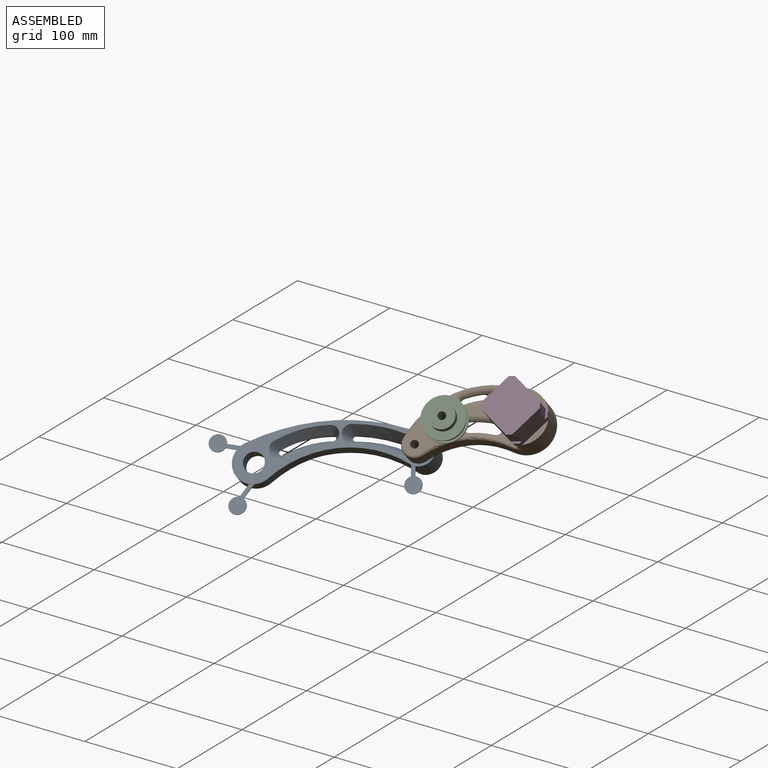
[diagram: assembled view]
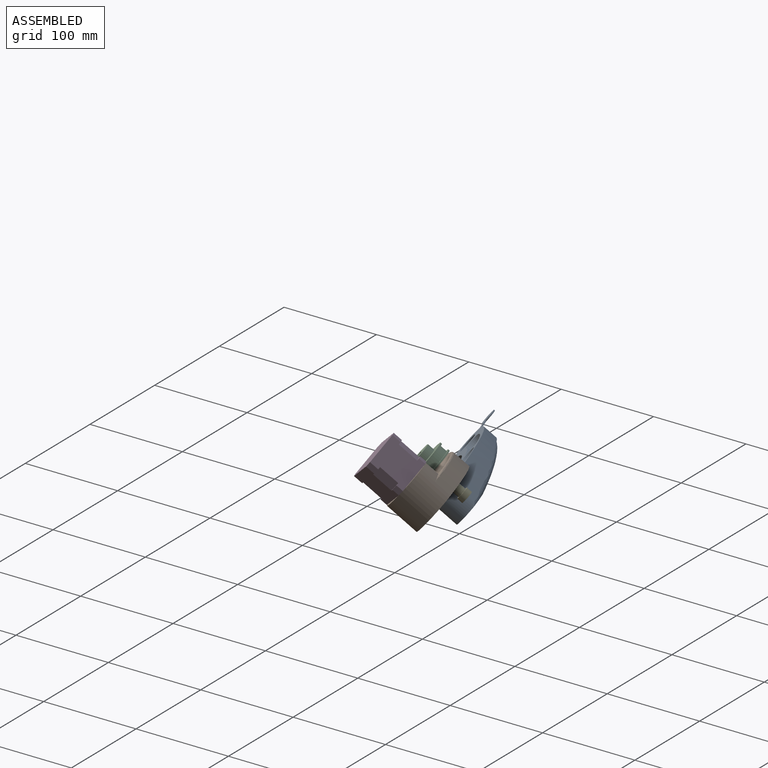
[diagram: assembled view, second angle]
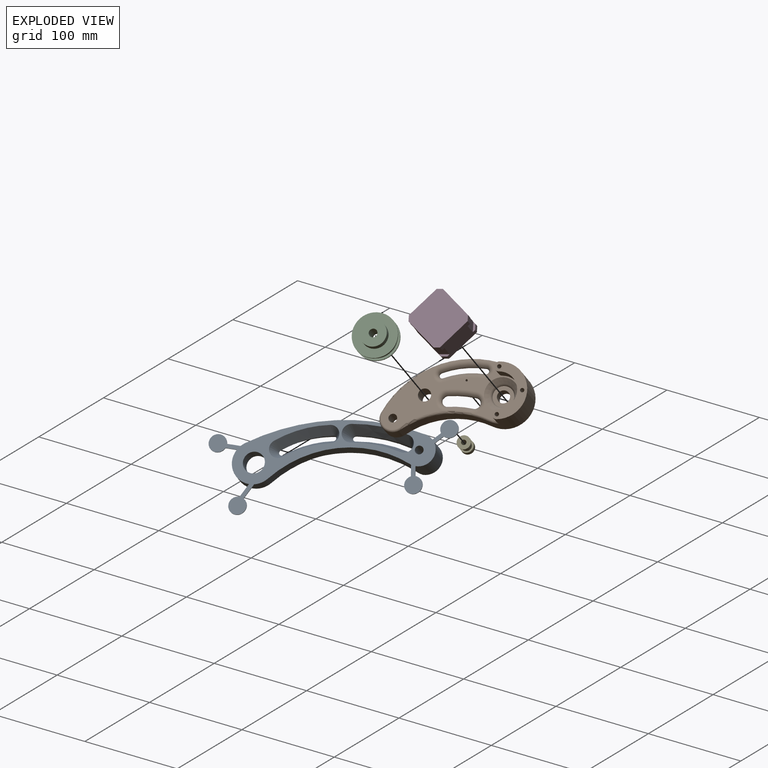
[diagram: exploded view]
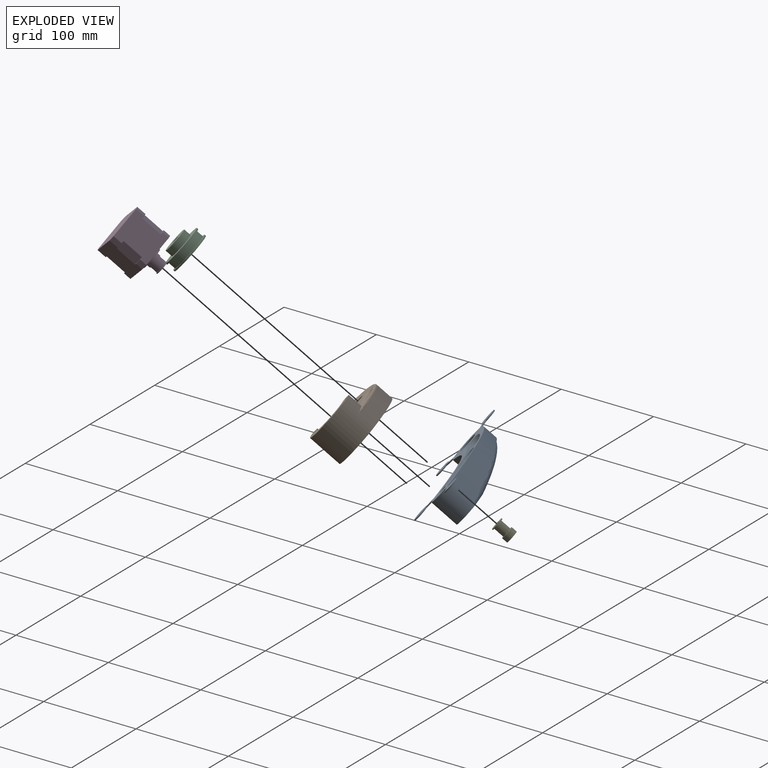
[diagram: exploded view, second angle]
ASSEMBLY  parts=5 mates=5
PART A: 54 faces, bbox 228.1x175.6x38.1 mm
  f0: cylinder r=20mm len=39.42mm, axis (0,0,-1), area 1019.2mm2, adj f7,f11,f14,f15,f45,f46,f49,f50
  f1: cylinder r=10mm len=20mm, axis (0,0,-1), area 942.5mm2, adj f14,f15
  f2: cylinder r=96.01mm len=27.82mm, axis (0,0,-1), area 48.6mm2, adj f3,f21,f27
  f3: cylinder r=2.5mm len=4.96mm, axis (0,0,-1), area 29.2mm2, adj f2,f12,f23,f25
  f4: cylinder r=124.74mm len=45.01mm, axis (0,0,-1), area 188.8mm2, adj f5,f10,f20,f34
  f5: cylinder r=2.5mm len=7.47mm, axis (0,0,-1), area 55.8mm2, adj f4,f6,f19,f33
  f6: cylinder r=129.74mm len=46.81mm, axis (0,0,-1), area 225.2mm2, adj f5,f10,f17,f35
  f7: cylinder r=204.43mm len=161.57mm, axis (0,0,-1), area 3192.5mm2, adj f0,f8,f14,f15,f31
  f8: cylinder r=15mm len=30mm, axis (0,0,-1), area 1466.7mm2, adj f7,f11,f13,f14,f31,f32,f37,f38
  f9: cylinder r=4mm len=30mm, axis (0,0,-1), area 754mm2, adj f13,f14
  f10: cylinder r=2.5mm len=4.95mm, axis (0,0,-1), area 5.2mm2, adj f4,f6,f18,f36
  f11: cylinder r=107.54mm len=128.13mm, axis (0,0,-1), area 2549.7mm2, adj f0,f8,f14,f15,f32
  f12: cylinder r=101.01mm len=31.01mm, axis (0,0,-1), area 61.5mm2, adj f3,f24,f26
  f13: plane 37.7x32.66mm, normal (0,0,1), area 657.9mm2, adj f8,f9,f16,f31,f32,f33,f35
  f14: plane 224.25x92.89mm, normal (0,0,-1), area 4089mm2, adj f0,f1,f7,f8,f9,f11,f17,f18
  f15: plane 83.65x49.18mm, normal (0,0,1), area 1125.8mm2, adj f0,f1,f7,f11,f16,f31,f32
  f16: cone r=21mm half-angle=82.6deg, axis (0,0,1), area 909.8mm2, adj f13,f15,f25,f26,f27,f28,f29,f30
  f17: cone r=135.74mm half-angle=16.7deg, axis (0,0,-1), area 1096.3mm2, adj f6,f14,f18,f19
  f18: cone r=2.5mm half-angle=16.7deg, axis (0,0,-1), area 360.8mm2, adj f10,f14,f17,f20
  f19: cone r=2.5mm half-angle=16.7deg, axis (0,0,-1), area 360.8mm2, adj f5,f14,f17,f20
  f20: cone r=124.74mm half-angle=16.7deg, axis (0,0,1), area 1005.4mm2, adj f4,f14,f18,f19
  f21: cone r=96.01mm half-angle=21.8deg, axis (0,0,1), area 739.7mm2, adj f2,f14,f22,f23,f29
  f22: cone r=2.5mm half-angle=21.8deg, axis (0,0,-1), area 279.1mm2, adj f14,f21,f24,f30
  f23: cone r=2.5mm half-angle=21.8deg, axis (0,0,-1), area 279.1mm2, adj f3,f14,f21,f24
  f24: cone r=107.01mm half-angle=21.8deg, axis (0,0,-1), area 827.2mm2, adj f12,f14,f22,f23,f28
  f25: bspline ~10.95x7.69mm, area 51.4mm2, adj f3,f16,f26,f27
  f26: bspline ~46.61x8.73mm, area 145.4mm2, adj f12,f16,f25,f28
  f27: bspline ~43.46x8.5mm, area 132.8mm2, adj f2,f16,f25,f29
  f28: bspline ~22.13x7.4mm, area 62.5mm2, adj f16,f24,f26,f30
  f29: bspline ~22.74x6.5mm, area 64.5mm2, adj f16,f21,f27,f30
  f30: bspline ~8.07x5.31mm, area 13.2mm2, adj f16,f22,f28,f29
  f31: bspline ~160.96x46.17mm, area 1007.1mm2, adj f7,f8,f13,f15,f16
  f32: bspline ~130.87x41.13mm, area 838.6mm2, adj f8,f11,f13,f15,f16
  f33: bspline ~9.99x8.63mm, area 31.3mm2, adj f5,f13,f16,f34,f35
  f34: bspline ~68.93x30.92mm, area 238.9mm2, adj f4,f16,f33,f36
  f35: bspline ~69.25x29.81mm, area 233.9mm2, adj f6,f13,f16,f33,f36
  f36: bspline ~10.97x6.96mm, area 55.2mm2, adj f10,f16,f34,f35
  f37: plane 10.51x1.94mm, normal (0.98,0.18,0), area 10.7mm2, adj f8,f14,f39,f40
  f38: plane 8.88x1.64mm, normal (-0.98,-0.18,0), area 9mm2, adj f8,f14,f39,f40
  f39: cylinder r=8.34mm len=16.68mm, axis (0,0,-1), area 48.4mm2, adj f14,f37,f38,f40
  f40: plane 27.14x16.68mm, normal (0,0,1), area 256.9mm2, adj f8,f37,f38,f39
  f41: plane 8.48x4.15mm, normal (0.44,0.9,0), area 9.4mm2, adj f8,f14,f43,f44
  f42: plane 9.08x4.45mm, normal (-0.44,-0.9,0), area 10.1mm2, adj f8,f14,f43,f44
  f43: cylinder r=8.34mm len=16.68mm, axis (0,0,-1), area 48.4mm2, adj f14,f41,f42,f44
  f44: plane 24.88x18.46mm, normal (0,0,1), area 256.7mm2, adj f8,f41,f42,f43
  f45: plane 11.47x10.76mm, normal (-0.68,-0.73,0), area 15.7mm2, adj f0,f14,f48,f49
  f46: plane 10.1x9.47mm, normal (0.68,0.73,0), area 13.8mm2, adj f0,f14,f47,f49
  f47: cylinder r=2mm len=1mm, axis (0,0,-1), area 0.2mm2, adj f14,f46,f48,f49
  f48: cylinder r=8.34mm len=16.68mm, axis (0,0,-1), area 48.3mm2, adj f14,f45,f47,f49
  f49: plane 26.26x25.64mm, normal (0,0,1), area 277mm2, adj f0,f45,f46,f47,f48
  f50: plane 11.83x4.66mm, normal (-0.37,0.93,0), area 12.7mm2, adj f0,f14,f52,f53
  f51: plane 9.9x3.9mm, normal (0.37,-0.93,0), area 10.6mm2, adj f0,f14,f52,f53
  f52: cylinder r=8.34mm len=16.68mm, axis (0,0,-1), area 48.3mm2, adj f14,f50,f51,f53
  f53: plane 28.18x18.05mm, normal (0,0,1), area 264.2mm2, adj f0,f50,f51,f52
PART B: 46 faces, bbox 141.9x77.3x35 mm
  f0: cylinder r=6mm len=12mm, axis (0,0,-1), area 452.4mm2, adj f11,f22
  f1: cylinder r=2mm len=20mm, axis (0,0,-1), area 251.3mm2, adj f15,f17
  f2: cylinder r=2mm len=20mm, axis (0,0,-1), area 251.3mm2, adj f15,f19
  f3: cylinder r=2mm len=20mm, axis (0,0,-1), area 251.3mm2, adj f15,f21
  f4: plane 127.84x61.49mm, normal (0,0,1), area 2315.4mm2, adj f5,f8,f10,f12,f13,f14,f23,f25
  f5: cylinder r=26.5mm len=52.41mm, axis (0,0,-1), area 2881.2mm2, adj f4,f6,f9,f11,f12,f13,f15,f26
  f6: cylinder r=90.24mm len=126.3mm, axis (0,0,-1), area 2534mm2, adj f5,f7,f11,f29
  f7: cylinder r=12.5mm len=20.47mm, axis (0,0,-1), area 599.1mm2, adj f6,f9,f11,f28
  f8: cylinder r=4mm len=20mm, axis (0,0,-1), area 502.7mm2, adj f4,f11
  f9: cylinder r=80mm len=79.22mm, axis (0,0,-1), area 1504mm2, adj f5,f7,f11,f27
  f10: cylinder r=6mm len=20mm, axis (0,0,-1), area 754mm2, adj f4,f11
  f11: plane 139x67.19mm, normal (0,0,-1), area 4060.4mm2, adj f0,f5,f6,f7,f8,f9,f10,f16
  f12: cylinder r=4.58mm len=17mm, axis (0,0,-1), area 219.5mm2, adj f4,f5,f14,f15,f26
  f13: cylinder r=4.58mm len=15mm, axis (0,0,-1), area 215.8mm2, adj f4,f5,f14,f15
  f14: cylinder r=17.34mm len=34.29mm, axis (0,0,-1), area 817.2mm2, adj f4,f12,f13,f15
  f15: plane 52.51x35.69mm, normal (0,0,1), area 658.9mm2, adj f1,f2,f3,f5,f12,f13,f14
  f16: cylinder r=4mm len=15mm, axis (0,0,-1), area 377mm2, adj f11,f17
  f17: plane 8x8mm, normal (0,0,-1), area 37.7mm2, adj f1,f16
  f18: cylinder r=4mm len=15mm, axis (0,0,-1), area 377mm2, adj f11,f19
  f19: plane 8x8mm, normal (0,0,-1), area 37.7mm2, adj f2,f18
  f20: cylinder r=4mm len=15mm, axis (0,0,-1), area 377mm2, adj f11,f21
  f21: plane 8x8mm, normal (0,0,-1), area 37.7mm2, adj f3,f20
  f22: plane 20x20mm, normal (0,0,1), area 201.1mm2, adj f0,f24
  f23: cone r=10mm half-angle=45deg, axis (0,0,1), area 553.5mm2, adj f4,f24,f39
  f24: torus R=15mm, axis (0,0,-1), area 254.5mm2, adj f22,f23
  f25: cylinder r=1mm len=20mm, axis (0,0,1), area 125.7mm2, adj f4,f11
  f26: torus R=24.5mm, axis (0,0,1), area 27.8mm2, adj f4,f5,f12,f27
  f27: torus R=82mm, axis (0,0,1), area 264.9mm2, adj f4,f9,f26,f28,f38
  f28: torus R=10.5mm, axis (0,0,1), area 98.5mm2, adj f4,f7,f27,f29
  f29: torus R=88.24mm, axis (0,0,1), area 418.7mm2, adj f4,f5,f6,f28
  f30: cone r=102mm half-angle=18.4deg, axis (0,0,-1), area 428.8mm2, adj f11,f31,f32,f41
  f31: cone r=5mm half-angle=18.4deg, axis (0,0,-1), area 372.5mm2, adj f11,f30,f33,f39
  f32: cone r=5mm half-angle=18.4deg, axis (0,0,-1), area 372.5mm2, adj f11,f30,f33,f40
  f33: cone r=87mm half-angle=18.4deg, axis (0,0,1), area 364.2mm2, adj f11,f31,f32,f38
  f34: cone r=82.74mm half-angle=18.4deg, axis (0,0,-1), area 679mm2, adj f11,f35,f36,f45
  f35: cone r=2.5mm half-angle=18.4deg, axis (0,0,-1), area 248.4mm2, adj f11,f34,f37,f43
  f36: cone r=2.5mm half-angle=18.4deg, axis (0,0,-1), area 248.4mm2, adj f11,f34,f37,f44
  f37: cone r=72.74mm half-angle=18.4deg, axis (0,0,1), area 599.4mm2, adj f11,f35,f36,f42
  f38: torus R=82mm, axis (0,0,1), area 182.4mm2, adj f27,f33,f39,f40
  f39: torus R=10mm, axis (0,0,1), area 167.1mm2, adj f4,f23,f31,f38,f41
  f40: torus R=10mm, axis (0,0,1), area 168.2mm2, adj f4,f32,f38,f41
  f41: torus R=102mm, axis (0,0,1), area 211.6mm2, adj f4,f30,f39,f40
  f42: torus R=72.74mm, axis (0,0,1), area 300.4mm2, adj f4,f37,f43,f44
  f43: torus R=7.5mm, axis (0,0,1), area 106.5mm2, adj f4,f35,f42,f45
  f44: torus R=7.5mm, axis (0,0,1), area 106.5mm2, adj f4,f36,f42,f45
  f45: torus R=87.74mm, axis (0,0,1), area 334.6mm2, adj f4,f34,f43,f44
PART C: 10 faces, bbox 42x42x18.2 mm
  f0: cylinder r=4mm len=18.2mm, axis (0,0,-1), area 457.4mm2, adj f3,f9
  f1: cylinder r=21mm len=42mm, axis (0,0,-1), area 197.9mm2, adj f2,f3
  f2: plane 42x42mm, normal (0,0,1), area 269.2mm2, adj f1,f4
  f3: plane 42x42mm, normal (0,0,-1), area 1335.2mm2, adj f0,f1
  f4: cylinder r=18.85mm len=37.7mm, axis (0,0,-1), area 912mm2, adj f2,f7
  f5: cylinder r=21mm len=42mm, axis (0,0,-1), area 197.9mm2, adj f6,f7
  f6: plane 42x42mm, normal (0,0,1), area 894.6mm2, adj f5,f8
  f7: plane 42x42mm, normal (0,0,-1), area 269.2mm2, adj f4,f5
  f8: cylinder r=12.5mm len=25mm, axis (0,0,-1), area 589mm2, adj f6,f9
  f9: plane 25x25mm, normal (0,0,1), area 440.6mm2, adj f0,f8
PART D: 42 faces, bbox 42x42x53.2 mm
  f0: plane 6.83x6.83mm, normal (0,0,-1), area 15.3mm2, adj f5,f6,f17,f21
  f1: plane 6.83x6.83mm, normal (0,0,-1), area 15.3mm2, adj f3,f6,f20,f24
  f2: plane 6.83x6.83mm, normal (0,0,-1), area 15.3mm2, adj f3,f4,f19,f23
  f3: plane 38.9x34mm, normal (1,0,0), area 1199.8mm2, adj f1,f2,f7,f19,f20,f23,f24,f27
  f4: plane 38.9x34mm, normal (0,1,0), area 1199.8mm2, adj f2,f7,f8,f18,f19,f22,f23,f26
  f5: plane 38.9x34mm, normal (-1,0,0), area 1199.8mm2, adj f0,f7,f8,f17,f18,f21,f22,f25
  f6: plane 38.9x34mm, normal (0,-1,0), area 1199.8mm2, adj f0,f1,f7,f17,f20,f21,f24,f25
  f7: plane 42x42mm, normal (0,0,1), area 1332.4mm2, adj f3,f4,f5,f6,f9,f17,f18,f19
  f8: plane 6.83x6.83mm, normal (0,0,-1), area 15.3mm2, adj f4,f5,f18,f22
  f9: cylinder r=11mm len=22mm, axis (0,0,-1), area 138.2mm2, adj f7,f10
  f10: plane 22x22mm, normal (0,0,1), area 226.2mm2, adj f9,f11
  f11: cylinder r=7mm len=14mm, axis (0,0,-1), area 167.1mm2, adj f10,f12
  f12: plane 14x14mm, normal (0,0,1), area 31.2mm2, adj f11,f13
  f13: cylinder r=6.25mm len=12.5mm, axis (0,0,-1), area 294.5mm2, adj f12,f16
  f14: cylinder r=7mm len=14mm, axis (0,0,-1), area 44mm2, adj f15,f16
  f15: plane 14x14mm, normal (0,0,1), area 153.9mm2, adj f14
  f16: plane 14x14mm, normal (0,0,-1), area 31.2mm2, adj f13,f14
  f17: plane 7.5x4mm, normal (-0.71,-0.71,0), area 42.4mm2, adj f0,f5,f6,f7
  f18: plane 7.5x4mm, normal (-0.71,0.71,0), area 42.4mm2, adj f4,f5,f7,f8
  f19: plane 7.5x4mm, normal (0.71,0.71,0), area 42.4mm2, adj f2,f3,f4,f7
  f20: plane 7.5x4mm, normal (0.71,-0.71,0), area 42.4mm2, adj f1,f3,f6,f7
  f21: plane 21.7x6.83mm, normal (-0.71,-0.71,0), area 209.6mm2, adj f0,f5,f6,f25
  f22: plane 21.7x6.83mm, normal (-0.71,0.71,0), area 209.6mm2, adj f4,f5,f8,f26
  f23: plane 21.7x6.83mm, normal (0.71,0.71,0), area 209.6mm2, adj f2,f3,f4,f27
  f24: plane 21.7x6.83mm, normal (0.71,-0.71,0), area 209.6mm2, adj f1,f3,f6,f33
  f25: plane 6.83x6.83mm, normal (0,0,1), area 15.3mm2, adj f5,f6,f21,f28
  f26: plane 6.83x6.83mm, normal (0,0,1), area 15.3mm2, adj f4,f5,f22,f29
  f27: plane 6.83x6.83mm, normal (0,0,1), area 15.3mm2, adj f3,f4,f23,f30
  f28: plane 9.7x4mm, normal (-0.71,-0.71,0), area 54.9mm2, adj f5,f6,f25,f32
  f29: plane 9.7x4mm, normal (-0.71,0.71,0), area 54.9mm2, adj f4,f5,f26,f32
  f30: plane 9.7x4mm, normal (0.71,0.71,0), area 54.9mm2, adj f3,f4,f27,f32
  f31: plane 9.7x4mm, normal (0.71,-0.71,0), area 54.9mm2, adj f3,f6,f32,f33
  f32: plane 42x42mm, normal (0,0,-1), area 1732mm2, adj f3,f4,f5,f6,f28,f29,f30,f31
  f33: plane 6.83x6.83mm, normal (0,0,1), area 15.3mm2, adj f3,f6,f24,f31
  f34: cylinder r=1.24mm len=5mm, axis (0,0,1), area 39.1mm2, adj f7,f35
  f35: plane 2.49x2.49mm, normal (0,0,1), area 4.9mm2, adj f34
  f36: cylinder r=1.24mm len=5mm, axis (0,0,1), area 39.1mm2, adj f7,f37
  f37: plane 2.49x2.49mm, normal (0,0,1), area 4.9mm2, adj f36
  f38: cylinder r=1.24mm len=5mm, axis (0,0,1), area 39.1mm2, adj f7,f39
  f39: plane 2.49x2.49mm, normal (0,0,1), area 4.9mm2, adj f38
  f40: cylinder r=1.24mm len=5mm, axis (0,0,1), area 39.1mm2, adj f7,f41
  f41: plane 2.49x2.49mm, normal (0,0,1), area 4.9mm2, adj f40
PART E: 8 faces, bbox 13x13x18 mm
  f0: cylinder r=2.5mm len=18mm, axis (0,0,-1), area 282.7mm2, adj f3,f6
  f1: cylinder r=6.5mm len=13mm, axis (0,0,-1), area 245mm2, adj f2,f3
  f2: plane 13x13mm, normal (0,0,1), area 60.3mm2, adj f1,f4
  f3: plane 13x13mm, normal (0,0,-1), area 113.1mm2, adj f0,f1
  f4: cylinder r=4.8mm len=11mm, axis (0,0,-1), area 331.8mm2, adj f2,f7
  f5: cylinder r=6.5mm len=13mm, axis (0,0,-1), area 40.8mm2, adj f6,f7
  f6: plane 13x13mm, normal (0,0,1), area 113.1mm2, adj f0,f5
  f7: plane 13x13mm, normal (0,0,-1), area 60.3mm2, adj f4,f5
PLACE A rot(axis=(0.3,-0.85,-0.43),180deg) t=(374.33,229.4,-294.31)mm
PLACE B rot(axis=(0,0.45,-0.89),145.3deg) t=(512.89,323.96,-240.54)mm
PLACE C rot(axis=(0.33,-0.33,0.88),133.9deg) t=(454.46,280.62,-234.2)mm
PLACE D rot(axis=(-0.15,-0.91,-0.39),156.2deg) t=(523.79,292.78,-213.79)mm
PLACE E rot(axis=(0.89,0.41,-0.2),52.1deg) t=(444.38,309.45,-258.93)mm
MATE revolute B.f3 <-> D.f36  axis (0.26,-0.73,0.63) through (514.78,310.3,-201.61)mm
MATE revolute E.f5 <-> B.f10  axis (0.26,-0.73,0.63) through (449,296.25,-247.6)mm
MATE revolute D.f40 <-> B.f2  axis (-0.26,0.73,-0.63) through (528.95,286.26,-235.42)mm
MATE revolute B.f8 <-> A.f8  axis (-0.26,0.73,-0.63) through (430.63,273.21,-266.18)mm
MATE fastened C.f8 <-> B.f10  axis (0.26,-0.73,0.63) through (459.13,267.27,-222.74)mm
